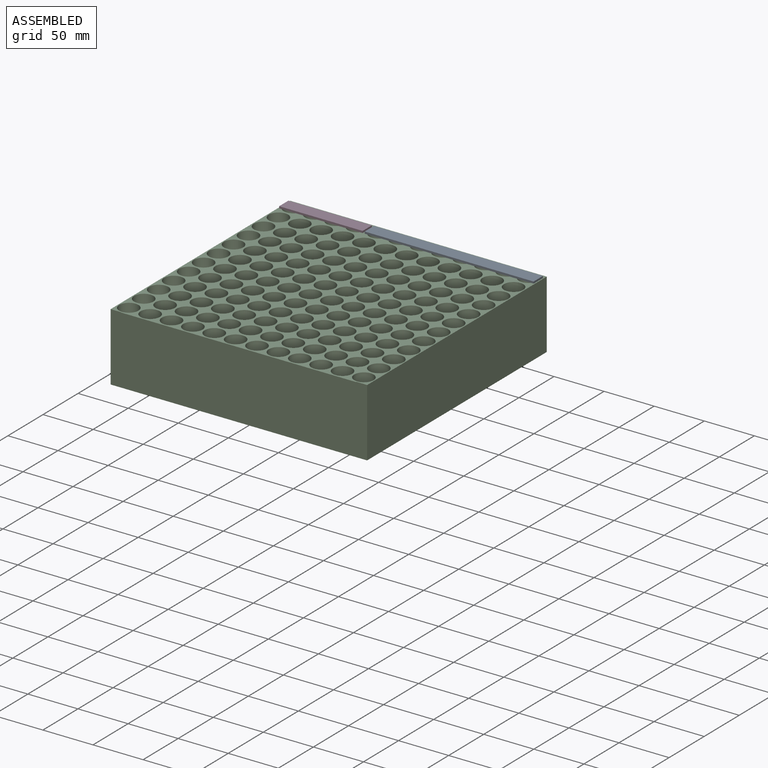
[diagram: assembled view]
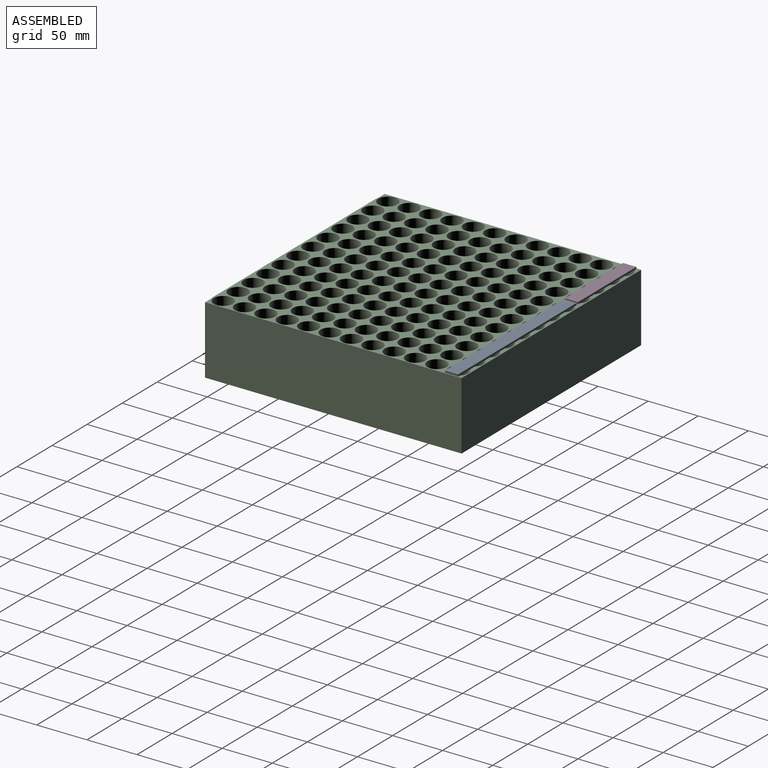
[diagram: assembled view, second angle]
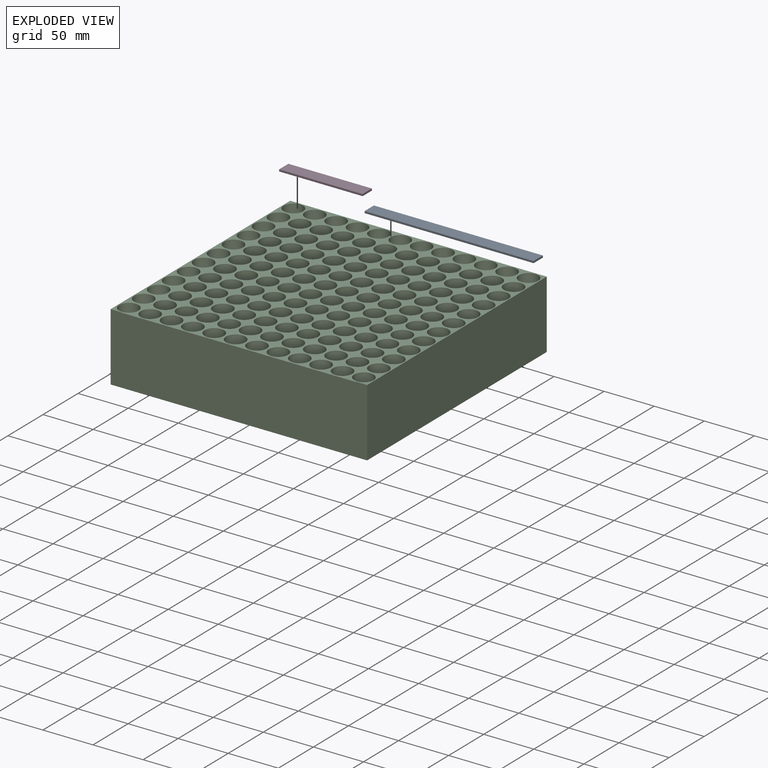
[diagram: exploded view]
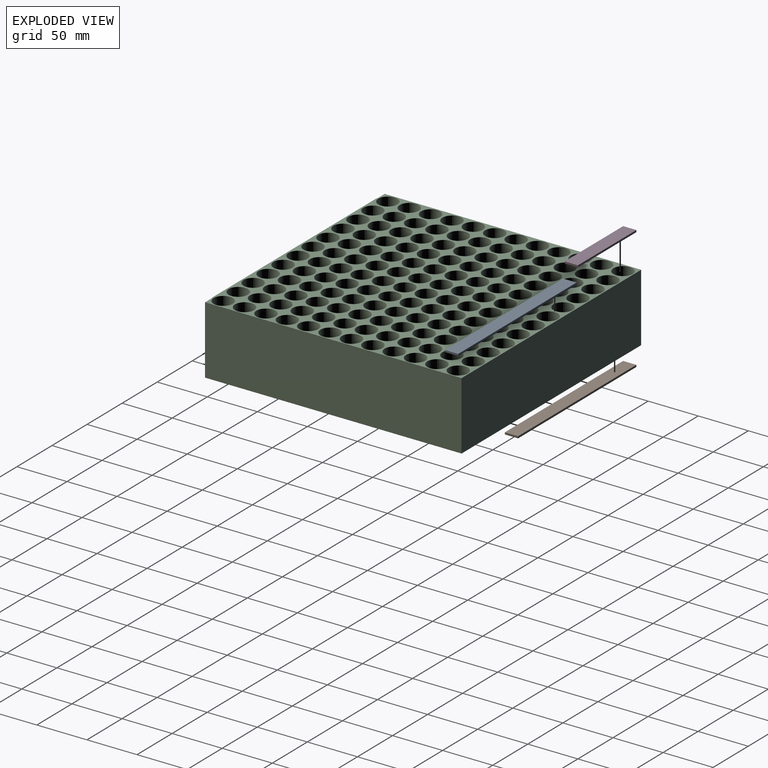
[diagram: exploded view, second angle]
ASSEMBLY  parts=4 mates=3
PART A: 7 faces, bbox 168.7x13.2x1.9 mm
  f0: plane 168.69x1.91mm, normal (0,1,0), area 321.4mm2, adj f1,f3,f4,f5
  f1: plane 13.21x1.91mm, normal (-1,0,0), area 25.2mm2, adj f0,f2,f4,f5
  f2: plane 168.69x1.91mm, normal (0,-1,0), area 321.4mm2, adj f1,f3,f4,f5
  f3: plane 13.21x1.91mm, normal (1,0,0), area 25.2mm2, adj f0,f2,f4,f5
  f4: plane 168.69x13.21mm, normal (0,0,1), area 2228mm2, adj f0,f1,f2,f3,f6
  f5: plane 168.69x13.21mm, normal (0,0,-1), area 2228mm2, adj f0,f1,f2,f3,f6
  f6: cylinder r=0.12mm len=1.91mm, axis (0,0,1), area 1.5mm2, adj f4,f5
PART B: same geometry as A
PART C: 154 faces, bbox 256x256.5x68 mm
  f0: plane 256.03x68mm, normal (0,-1,0), area 17175.5mm2, adj f2,f4,f5,f16,f150,f152,f153
  f1: plane 256.03x68mm, normal (0,1,0), area 17410.2mm2, adj f2,f4,f5,f16
  f2: plane 256.03x68mm, normal (-1,0,0), area 17410.2mm2, adj f0,f1,f4,f5
  f3: cylinder r=9.65mm len=68mm, axis (0,0,-1), area 4123.9mm2, adj f4,f5
  f4: plane 256.53x256.03mm, normal (0,0,1), area 23524.6mm2, adj f0,f1,f2,f3,f6,f7,f8,f9
  f5: plane 256.03x256.03mm, normal (0,0,-1), area 23407.3mm2, adj f0,f1,f2,f3,f6,f7,f8,f9
  f6: cylinder r=9.65mm len=68mm, axis (0,0,-1), area 4123.9mm2, adj f4,f5
  f7: cylinder r=9.65mm len=68mm, axis (0,0,-1), area 4123.9mm2, adj f4,f5
  f8: cylinder r=9.65mm len=68mm, axis (0,0,-1), area 4123.9mm2, adj f4,f5
  f9: cylinder r=9.65mm len=68mm, axis (0,0,-1), area 4123.9mm2, adj f4,f5
  f10: cylinder r=9.65mm len=68mm, axis (0,0,-1), area 4123.9mm2, adj f4,f5
  f11: cylinder r=9.65mm len=68mm, axis (0,0,-1), area 4123.9mm2, adj f4,f5
  f12: cylinder r=9.65mm len=68mm, axis (0,0,-1), area 4123.9mm2, adj f4,f5
  f13: cylinder r=9.65mm len=68mm, axis (0,0,-1), area 4123.9mm2, adj f4,f5
  f14: cylinder r=9.65mm len=68mm, axis (0,0,-1), area 4123.9mm2, adj f4,f5
  f15: cylinder r=9.65mm len=68mm, axis (0,0,-1), area 4123.9mm2, adj f4,f5
  f16: plane 256.03x68mm, normal (1,0,0), area 17410.2mm2, adj f0,f1,f4,f5
  f17: cylinder r=9.65mm len=68mm, axis (0,0,-1), area 4123.9mm2, adj f4,f5
  f18: cylinder r=9.65mm len=68mm, axis (0,0,-1), area 4123.9mm2, adj f4,f5
  f19: cylinder r=9.65mm len=68mm, axis (0,0,-1), area 4123.9mm2, adj f4,f5
  f20: cylinder r=9.65mm len=68mm, axis (0,0,-1), area 4123.9mm2, adj f4,f5
  f21: cylinder r=9.65mm len=68mm, axis (0,0,-1), area 4123.9mm2, adj f4,f5
  f22: cylinder r=9.65mm len=68mm, axis (0,0,-1), area 4123.9mm2, adj f4,f5
  f23: cylinder r=9.65mm len=68mm, axis (0,0,-1), area 4123.9mm2, adj f4,f5
  f24: cylinder r=9.65mm len=68mm, axis (0,0,-1), area 4123.9mm2, adj f4,f5
  f25: cylinder r=9.65mm len=68mm, axis (0,0,-1), area 4123.9mm2, adj f4,f5
  f26: cylinder r=9.65mm len=68mm, axis (0,0,-1), area 4123.9mm2, adj f4,f5
  f27: cylinder r=9.65mm len=68mm, axis (0,0,-1), area 4123.9mm2, adj f4,f5
  f28: cylinder r=9.65mm len=68mm, axis (0,0,-1), area 4123.9mm2, adj f4,f5
  f29: cylinder r=9.65mm len=68mm, axis (0,0,-1), area 4123.9mm2, adj f4,f5
  f30: cylinder r=9.65mm len=68mm, axis (0,0,-1), area 4123.9mm2, adj f4,f5
  f31: cylinder r=9.65mm len=68mm, axis (0,0,-1), area 4123.9mm2, adj f4,f5
  f32: cylinder r=9.65mm len=68mm, axis (0,0,-1), area 4123.9mm2, adj f4,f5
  f33: cylinder r=9.65mm len=68mm, axis (0,0,-1), area 4123.9mm2, adj f4,f5
  f34: cylinder r=9.65mm len=68mm, axis (0,0,-1), area 4123.9mm2, adj f4,f5
  f35: cylinder r=9.65mm len=68mm, axis (0,0,-1), area 4123.9mm2, adj f4,f5
  f36: cylinder r=9.65mm len=68mm, axis (0,0,-1), area 4123.9mm2, adj f4,f5
  f37: cylinder r=9.65mm len=68mm, axis (0,0,-1), area 4123.9mm2, adj f4,f5
  f38: cylinder r=9.65mm len=68mm, axis (0,0,-1), area 4123.9mm2, adj f4,f5
  f39: cylinder r=9.65mm len=68mm, axis (0,0,-1), area 4123.9mm2, adj f4,f5
  f40: cylinder r=9.65mm len=68mm, axis (0,0,-1), area 4123.9mm2, adj f4,f5
  f41: cylinder r=9.65mm len=68mm, axis (0,0,-1), area 4123.9mm2, adj f4,f5
  f42: cylinder r=9.65mm len=68mm, axis (0,0,-1), area 4123.9mm2, adj f4,f5
  f43: cylinder r=9.65mm len=68mm, axis (0,0,-1), area 4123.9mm2, adj f4,f5
  f44: cylinder r=9.65mm len=68mm, axis (0,0,-1), area 4123.9mm2, adj f4,f5
  f45: cylinder r=9.65mm len=68mm, axis (0,0,-1), area 4123.9mm2, adj f4,f5
  f46: cylinder r=9.65mm len=68mm, axis (0,0,-1), area 4123.9mm2, adj f4,f5
  f47: cylinder r=9.65mm len=68mm, axis (0,0,-1), area 4123.9mm2, adj f4,f5
  f48: cylinder r=9.65mm len=68mm, axis (0,0,-1), area 4123.9mm2, adj f4,f5
  f49: cylinder r=9.65mm len=68mm, axis (0,0,-1), area 4123.9mm2, adj f4,f5
  f50: cylinder r=9.65mm len=68mm, axis (0,0,-1), area 4123.9mm2, adj f4,f5
  f51: cylinder r=9.65mm len=68mm, axis (0,0,-1), area 4123.9mm2, adj f4,f5
  f52: cylinder r=9.65mm len=68mm, axis (0,0,-1), area 4123.9mm2, adj f4,f5
  f53: cylinder r=9.65mm len=68mm, axis (0,0,-1), area 4123.9mm2, adj f4,f5
  f54: cylinder r=9.65mm len=68mm, axis (0,0,-1), area 4123.9mm2, adj f4,f5
  f55: cylinder r=9.65mm len=68mm, axis (0,0,-1), area 4123.9mm2, adj f4,f5
  f56: cylinder r=9.65mm len=68mm, axis (0,0,-1), area 4123.9mm2, adj f4,f5
  f57: cylinder r=9.65mm len=68mm, axis (0,0,-1), area 4123.9mm2, adj f4,f5
  f58: cylinder r=9.65mm len=68mm, axis (0,0,-1), area 4123.9mm2, adj f4,f5
  f59: cylinder r=9.65mm len=68mm, axis (0,0,-1), area 4123.9mm2, adj f4,f5
  f60: cylinder r=9.65mm len=68mm, axis (0,0,-1), area 4123.9mm2, adj f4,f5
  f61: cylinder r=9.65mm len=68mm, axis (0,0,-1), area 4123.9mm2, adj f4,f5
  f62: cylinder r=9.65mm len=68mm, axis (0,0,-1), area 4123.9mm2, adj f4,f5
  f63: cylinder r=9.65mm len=68mm, axis (0,0,-1), area 4123.9mm2, adj f4,f5
  f64: cylinder r=9.65mm len=68mm, axis (0,0,-1), area 4123.9mm2, adj f4,f5
  f65: cylinder r=9.65mm len=68mm, axis (0,0,-1), area 4123.9mm2, adj f4,f5
  f66: cylinder r=9.65mm len=68mm, axis (0,0,-1), area 4123.9mm2, adj f4,f5
  f67: cylinder r=9.65mm len=68mm, axis (0,0,-1), area 4123.9mm2, adj f4,f5
  f68: cylinder r=9.65mm len=68mm, axis (0,0,-1), area 4123.9mm2, adj f4,f5
  f69: cylinder r=9.65mm len=68mm, axis (0,0,-1), area 4123.9mm2, adj f4,f5
  f70: cylinder r=9.65mm len=68mm, axis (0,0,-1), area 4123.9mm2, adj f4,f5
  f71: cylinder r=9.65mm len=68mm, axis (0,0,-1), area 4123.9mm2, adj f4,f5
  f72: cylinder r=9.65mm len=68mm, axis (0,0,-1), area 4123.9mm2, adj f4,f5
  f73: cylinder r=9.65mm len=68mm, axis (0,0,-1), area 4123.9mm2, adj f4,f5
  f74: cylinder r=9.65mm len=68mm, axis (0,0,-1), area 4123.9mm2, adj f4,f5
  f75: cylinder r=9.65mm len=68mm, axis (0,0,-1), area 4123.9mm2, adj f4,f5
  f76: cylinder r=9.65mm len=68mm, axis (0,0,-1), area 4123.9mm2, adj f4,f5
  f77: cylinder r=9.65mm len=68mm, axis (0,0,-1), area 4123.9mm2, adj f4,f5
  f78: cylinder r=9.65mm len=68mm, axis (0,0,-1), area 4123.9mm2, adj f4,f5
  f79: cylinder r=9.65mm len=68mm, axis (0,0,-1), area 4123.9mm2, adj f4,f5
  f80: cylinder r=9.65mm len=68mm, axis (0,0,-1), area 4123.9mm2, adj f4,f5
  f81: cylinder r=9.65mm len=68mm, axis (0,0,-1), area 4123.9mm2, adj f4,f5
  f82: cylinder r=9.65mm len=68mm, axis (0,0,-1), area 4123.9mm2, adj f4,f5
  f83: cylinder r=9.65mm len=68mm, axis (0,0,-1), area 4123.9mm2, adj f4,f5
  f84: cylinder r=9.65mm len=68mm, axis (0,0,-1), area 4123.9mm2, adj f4,f5
  f85: cylinder r=9.65mm len=68mm, axis (0,0,-1), area 4123.9mm2, adj f4,f5
  f86: cylinder r=9.65mm len=68mm, axis (0,0,-1), area 4123.9mm2, adj f4,f5
  f87: cylinder r=9.65mm len=68mm, axis (0,0,-1), area 4123.9mm2, adj f4,f5
  f88: cylinder r=9.65mm len=68mm, axis (0,0,-1), area 4123.9mm2, adj f4,f5
  f89: cylinder r=9.65mm len=68mm, axis (0,0,-1), area 4123.9mm2, adj f4,f5
  f90: cylinder r=9.65mm len=68mm, axis (0,0,-1), area 4123.9mm2, adj f4,f5
  f91: cylinder r=9.65mm len=68mm, axis (0,0,-1), area 4123.9mm2, adj f4,f5
  f92: cylinder r=9.65mm len=68mm, axis (0,0,-1), area 4123.9mm2, adj f4,f5
  f93: cylinder r=9.65mm len=68mm, axis (0,0,-1), area 4123.9mm2, adj f4,f5
  f94: cylinder r=9.65mm len=68mm, axis (0,0,-1), area 4123.9mm2, adj f4,f5
  f95: cylinder r=9.65mm len=68mm, axis (0,0,-1), area 4123.9mm2, adj f4,f5
  f96: cylinder r=9.65mm len=68mm, axis (0,0,-1), area 4123.9mm2, adj f4,f5
  f97: cylinder r=9.65mm len=68mm, axis (0,0,-1), area 4123.9mm2, adj f4,f5
  f98: cylinder r=9.65mm len=68mm, axis (0,0,-1), area 4123.9mm2, adj f4,f5
  f99: cylinder r=9.65mm len=68mm, axis (0,0,-1), area 4123.9mm2, adj f4,f5
  f100: cylinder r=9.65mm len=68mm, axis (0,0,-1), area 4123.9mm2, adj f4,f5
  f101: cylinder r=9.65mm len=68mm, axis (0,0,-1), area 4123.9mm2, adj f4,f5
  f102: cylinder r=9.65mm len=68mm, axis (0,0,-1), area 4123.9mm2, adj f4,f5
  f103: cylinder r=9.65mm len=68mm, axis (0,0,-1), area 4123.9mm2, adj f4,f5
  f104: cylinder r=9.65mm len=68mm, axis (0,0,-1), area 4123.9mm2, adj f4,f5
  f105: cylinder r=9.65mm len=68mm, axis (0,0,-1), area 4123.9mm2, adj f4,f5
  f106: cylinder r=9.65mm len=68mm, axis (0,0,-1), area 4123.9mm2, adj f4,f5
  f107: cylinder r=9.65mm len=68mm, axis (0,0,-1), area 4123.9mm2, adj f4,f5
  f108: cylinder r=9.65mm len=68mm, axis (0,0,-1), area 4123.9mm2, adj f4,f5
  f109: cylinder r=9.65mm len=68mm, axis (0,0,-1), area 4123.9mm2, adj f4,f5
  f110: cylinder r=9.65mm len=68mm, axis (0,0,-1), area 4123.9mm2, adj f4,f5
  f111: cylinder r=9.65mm len=68mm, axis (0,0,-1), area 4123.9mm2, adj f4,f5
  f112: cylinder r=9.65mm len=68mm, axis (0,0,-1), area 4123.9mm2, adj f4,f5
  f113: cylinder r=9.65mm len=68mm, axis (0,0,-1), area 4123.9mm2, adj f4,f5
  f114: cylinder r=9.65mm len=68mm, axis (0,0,-1), area 4123.9mm2, adj f4,f5
  f115: cylinder r=9.65mm len=68mm, axis (0,0,-1), area 4123.9mm2, adj f4,f5
  f116: cylinder r=9.65mm len=68mm, axis (0,0,-1), area 4123.9mm2, adj f4,f5
  f117: cylinder r=9.65mm len=68mm, axis (0,0,-1), area 4123.9mm2, adj f4,f5
  f118: cylinder r=9.65mm len=68mm, axis (0,0,-1), area 4123.9mm2, adj f4,f5
  f119: cylinder r=9.65mm len=68mm, axis (0,0,-1), area 4123.9mm2, adj f4,f5
  f120: cylinder r=9.65mm len=68mm, axis (0,0,-1), area 4123.9mm2, adj f4,f5
  f121: cylinder r=9.65mm len=68mm, axis (0,0,-1), area 4123.9mm2, adj f4,f5
  f122: cylinder r=9.65mm len=68mm, axis (0,0,-1), area 4123.9mm2, adj f4,f5
  f123: cylinder r=9.65mm len=68mm, axis (0,0,-1), area 4123.9mm2, adj f4,f5
  f124: cylinder r=9.65mm len=68mm, axis (0,0,-1), area 4123.9mm2, adj f4,f5
  f125: cylinder r=9.65mm len=68mm, axis (0,0,-1), area 4123.9mm2, adj f4,f5
  f126: cylinder r=9.65mm len=68mm, axis (0,0,-1), area 4123.9mm2, adj f4,f5
  f127: cylinder r=9.65mm len=68mm, axis (0,0,-1), area 4123.9mm2, adj f4,f5
  f128: cylinder r=9.65mm len=68mm, axis (0,0,-1), area 4123.9mm2, adj f4,f5
  f129: cylinder r=9.65mm len=68mm, axis (0,0,-1), area 4123.9mm2, adj f4,f5
  f130: cylinder r=9.65mm len=68mm, axis (0,0,-1), area 4123.9mm2, adj f4,f5
  f131: cylinder r=9.65mm len=68mm, axis (0,0,-1), area 4123.9mm2, adj f4,f5
  f132: cylinder r=9.65mm len=68mm, axis (0,0,-1), area 4123.9mm2, adj f4,f5
  f133: cylinder r=9.65mm len=68mm, axis (0,0,-1), area 4123.9mm2, adj f4,f5
  f134: cylinder r=9.65mm len=68mm, axis (0,0,-1), area 4123.9mm2, adj f4,f5
  f135: cylinder r=9.65mm len=68mm, axis (0,0,-1), area 4123.9mm2, adj f4,f5
  f136: cylinder r=9.65mm len=68mm, axis (0,0,-1), area 4123.9mm2, adj f4,f5
  f137: cylinder r=9.65mm len=68mm, axis (0,0,-1), area 4123.9mm2, adj f4,f5
  f138: cylinder r=9.65mm len=68mm, axis (0,0,-1), area 4123.9mm2, adj f4,f5
  f139: cylinder r=9.65mm len=68mm, axis (0,0,-1), area 4123.9mm2, adj f4,f5
  f140: cylinder r=9.65mm len=68mm, axis (0,0,-1), area 4123.9mm2, adj f4,f5
  f141: cylinder r=9.65mm len=68mm, axis (0,0,-1), area 4123.9mm2, adj f4,f5
  f142: cylinder r=9.65mm len=68mm, axis (0,0,-1), area 4123.9mm2, adj f4,f5
  f143: cylinder r=9.65mm len=68mm, axis (0,0,-1), area 4123.9mm2, adj f4,f5
  f144: cylinder r=9.65mm len=68mm, axis (0,0,-1), area 4123.9mm2, adj f4,f5
  f145: cylinder r=9.65mm len=68mm, axis (0,0,-1), area 4123.9mm2, adj f4,f5
  f146: cylinder r=9.65mm len=68mm, axis (0,0,-1), area 4123.9mm2, adj f4,f5
  f147: cylinder r=9.65mm len=68mm, axis (0,0,-1), area 4123.9mm2, adj f4,f5
  f148: cylinder r=9.65mm len=68mm, axis (0,0,-1), area 4123.9mm2, adj f4,f5
  f149: cylinder r=9.65mm len=68mm, axis (0,0,-1), area 4123.9mm2, adj f4,f5
  f150: plane 1x0.5mm, normal (-1,0,0), area 0.5mm2, adj f0,f4,f151,f153
  f151: plane 234.7x1mm, normal (0,-1,0), area 234.7mm2, adj f4,f150,f152,f153
  f152: plane 1x0.5mm, normal (1,0,0), area 0.5mm2, adj f0,f4,f151,f153
  f153: plane 234.7x0.5mm, normal (0,0,-1), area 117.3mm2, adj f0,f150,f151,f152
PART D: 7 faces, bbox 83.3x13.2x1.9 mm
  f0: plane 83.34x1.91mm, normal (0,1,0), area 158.8mm2, adj f1,f3,f4,f5
  f1: plane 13.21x1.91mm, normal (-1,0,0), area 25.2mm2, adj f0,f2,f4,f5
  f2: plane 83.34x1.91mm, normal (0,-1,0), area 158.8mm2, adj f1,f3,f4,f5
  f3: plane 13.21x1.91mm, normal (1,0,0), area 25.2mm2, adj f0,f2,f4,f5
  f4: plane 83.34x13.21mm, normal (0,0,1), area 1100.8mm2, adj f0,f1,f2,f3,f6
  f5: plane 83.34x13.21mm, normal (0,0,-1), area 1100.8mm2, adj f0,f1,f2,f3,f6
  f6: cylinder r=0.12mm len=1.91mm, axis (0,0,1), area 1.5mm2, adj f4,f5
PLACE A t=(85.34,0,68)mm
PLACE B t=(0,0,-1.91)mm
PLACE C at identity fixed
PLACE D t=(0,0,68)mm
MATE fastened B.f6 <-> C.f3  axis (0,0,1) through (0,0,0)mm
MATE fastened D.f6 <-> C.f3  axis (0,0,-1) through (0,0,68)mm
MATE fastened A.f6 <-> C.f9  axis (0,0,-1) through (85.34,0,68)mm
